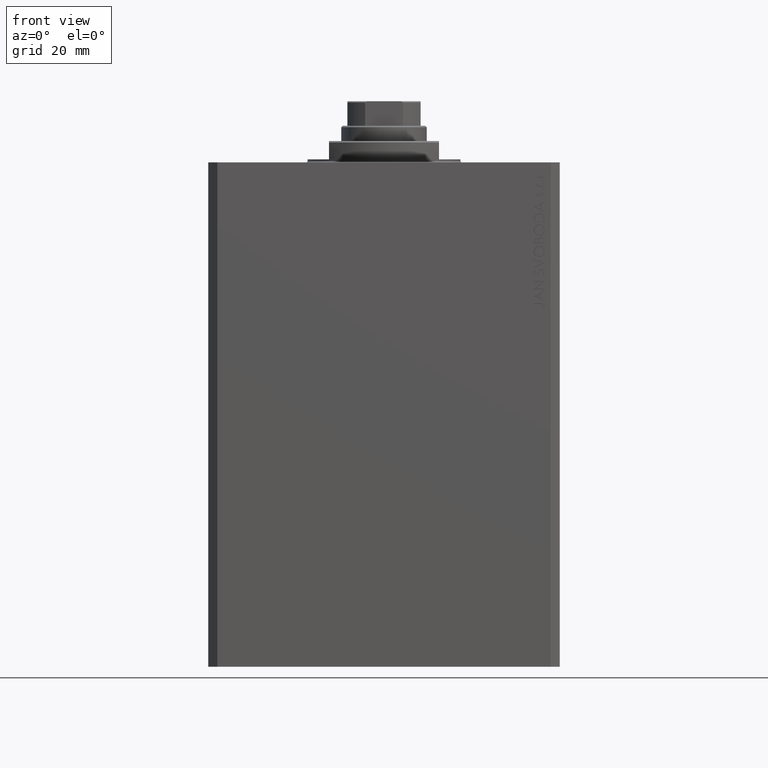
[diagram: clean part render]
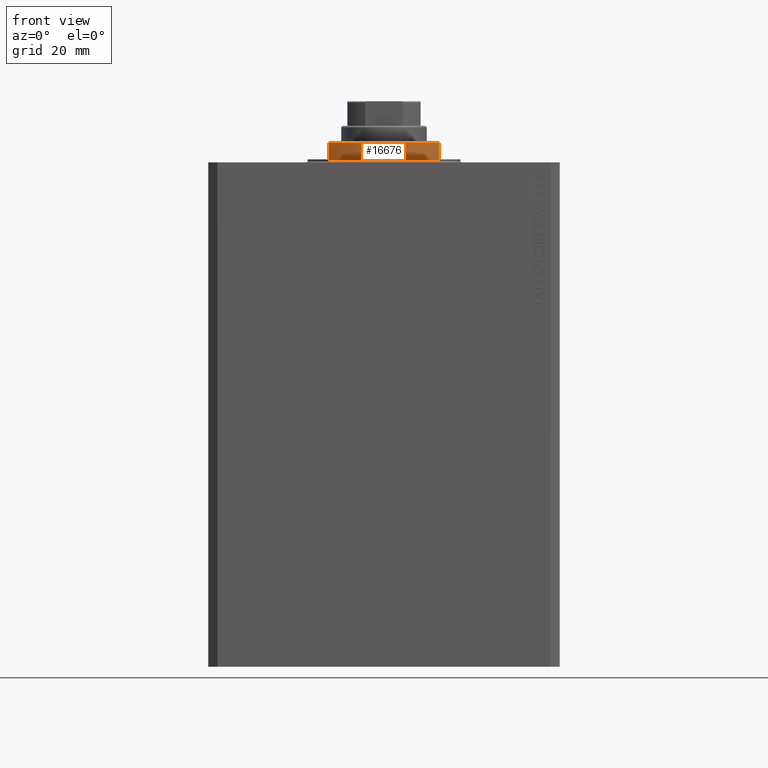
[diagram: same view with one face highlighted and labeled with its STEP entity id]
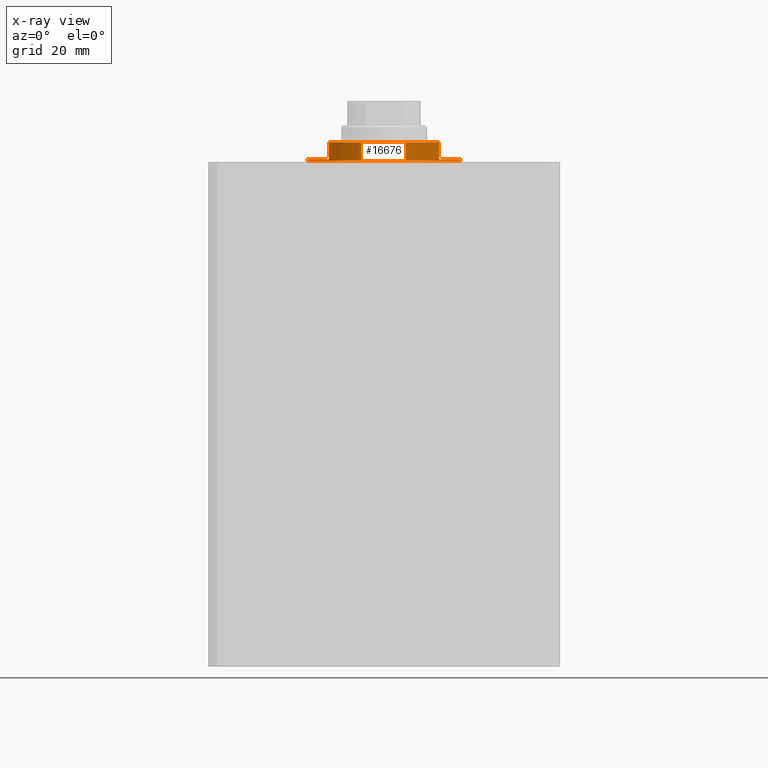
[diagram: x-ray of the same camera — body ghosted, the highlighted face saturated]
A machine part, front view. The second image highlights one B-rep face of the part: STEP entity #16676.
The next image is the same camera in x-ray: the body ghosted, the highlighted face saturated — about 0% of this face is hidden behind the body in this view.
In plain terms, the highlighted cylindrical surface (partial cylindrical patch) has radius 25 mm, axis along (0, 0, -1).
Its self-contained STEP definition (entity closure, byte-faithful):
#2075 = VERTEX_POINT ( 'NONE', #29955 ) ;
#2560 = AXIS2_PLACEMENT_3D ( 'NONE', #16094, #26647, #40516 ) ;
#2995 = EDGE_CURVE ( 'NONE', #25222, #2075, #5168, .T. ) ;
#5168 = LINE ( 'NONE', #19526, #12630 ) ;
#5194 = CIRCLE ( 'NONE', #38055, 25.00000000000000000 ) ;
#5323 = DIRECTION ( 'NONE',  ( -1.000000000000000000, 0.000000000000000000, 0.000000000000000000 ) ) ;
#5936 = VECTOR ( 'NONE', #16991, 1000.000000000000000 ) ;
#6571 = DIRECTION ( 'NONE',  ( -1.000000000000000000, 0.000000000000000000, 0.000000000000000000 ) ) ;
#7960 = FACE_OUTER_BOUND ( 'NONE', #42545, .T. ) ;
#11306 = VERTEX_POINT ( 'NONE', #28495 ) ;
#11765 = VERTEX_POINT ( 'NONE', #20487 ) ;
#12630 = VECTOR ( 'NONE', #16660, 1000.000000000000000 ) ;
#12932 = CARTESIAN_POINT ( 'NONE',  ( 18.00000000000000000, -17.34935157289747920, -7.000000000000000000 ) ) ;
#13378 = ORIENTED_EDGE ( 'NONE', *, *, #47366, .T. ) ;
#13770 = ORIENTED_EDGE ( 'NONE', *, *, #23723, .F. ) ;
#14617 = ORIENTED_EDGE ( 'NONE', *, *, #29239, .F. ) ;
#15464 = DIRECTION ( 'NONE',  ( -1.000000000000000000, 0.000000000000000000, 0.000000000000000000 ) ) ;
#16094 = CARTESIAN_POINT ( 'NONE',  ( 0.000000000000000000, 0.000000000000000000, -7.000000000000000000 ) ) ;
#16152 = DIRECTION ( 'NONE',  ( -0.000000000000000000, -0.000000000000000000, 1.000000000000000000 ) ) ;
#16336 = EDGE_CURVE ( 'NONE', #30092, #19725, #37440, .T. ) ;
#16536 = CIRCLE ( 'NONE', #20323, 25.00000000000000000 ) ;
#16660 = DIRECTION ( 'NONE',  ( -0.000000000000000000, -0.000000000000000000, 1.000000000000000000 ) ) ;
#16676 = ADVANCED_FACE ( 'NONE', ( #7960 ), #19207, .T. ) ;
#16991 = DIRECTION ( 'NONE',  ( 0.000000000000000000, 0.000000000000000000, -1.000000000000000000 ) ) ;
#17218 = LINE ( 'NONE', #12932, #5936 ) ;
#17554 = VECTOR ( 'NONE', #19479, 1000.000000000000000 ) ;
#19207 = CYLINDRICAL_SURFACE ( 'NONE', #2560, 25.00000000000000000 ) ;
#19479 = DIRECTION ( 'NONE',  ( 0.000000000000000000, 0.000000000000000000, -1.000000000000000000 ) ) ;
#19526 = CARTESIAN_POINT ( 'NONE',  ( 25.00000000000000000, 0.000000000000000000, -7.000000000000000000 ) ) ;
#19670 = CARTESIAN_POINT ( 'NONE',  ( 18.00000000000000000, -17.34935157289747920, -1.000000000000000000 ) ) ;
#19725 = VERTEX_POINT ( 'NONE', #42129 ) ;
#20323 = AXIS2_PLACEMENT_3D ( 'NONE', #26489, #40597, #15464 ) ;
#20392 = DIRECTION ( 'NONE',  ( 0.000000000000000000, 0.000000000000000000, 1.000000000000000000 ) ) ;
#20487 = CARTESIAN_POINT ( 'NONE',  ( 18.00000000000000000, -17.34935157289747920, -6.499999999999958256 ) ) ;
#20868 = VECTOR ( 'NONE', #16152, 1000.000000000000000 ) ;
#22319 = CIRCLE ( 'NONE', #43753, 25.00000000000000000 ) ;
#23678 = ORIENTED_EDGE ( 'NONE', *, *, #37753, .T. ) ;
#23723 = EDGE_CURVE ( 'NONE', #25222, #24915, #16536, .T. ) ;
#24220 = CARTESIAN_POINT ( 'NONE',  ( 0.000000000000000000, 0.000000000000000000, -6.499999999999958256 ) ) ;
#24915 = VERTEX_POINT ( 'NONE', #19670 ) ;
#25222 = VERTEX_POINT ( 'NONE', #46583 ) ;
#26489 = CARTESIAN_POINT ( 'NONE',  ( 0.000000000000000000, 0.000000000000000000, -1.000000000000000000 ) ) ;
#26647 = DIRECTION ( 'NONE',  ( -0.000000000000000000, -0.000000000000000000, 1.000000000000000000 ) ) ;
#27373 = ORIENTED_EDGE ( 'NONE', *, *, #2995, .T. ) ;
#28162 = AXIS2_PLACEMENT_3D ( 'NONE', #28611, #42950, #6571 ) ;
#28495 = CARTESIAN_POINT ( 'NONE',  ( -18.00000000000000000, -17.34935157289747920, -1.000000000000000000 ) ) ;
#28496 = CARTESIAN_POINT ( 'NONE',  ( -25.00000000000000000, 3.061616997868383043E-15, -1.000000000000000000 ) ) ;
#28611 = CARTESIAN_POINT ( 'NONE',  ( 0.000000000000000000, 0.000000000000000000, -1.000000000000000000 ) ) ;
#29239 = EDGE_CURVE ( 'NONE', #24915, #11765, #17218, .T. ) ;
#29343 = CARTESIAN_POINT ( 'NONE',  ( -18.00000000000000000, -17.34935157289747920, -6.499999999999956479 ) ) ;
#29955 = CARTESIAN_POINT ( 'NONE',  ( 25.00000000000000000, 0.000000000000000000, -0.4999999999999995559 ) ) ;
#30092 = VERTEX_POINT ( 'NONE', #28496 ) ;
#30437 = CIRCLE ( 'NONE', #28162, 25.00000000000000000 ) ;
#31660 = ORIENTED_EDGE ( 'NONE', *, *, #33366, .F. ) ;
#33366 = EDGE_CURVE ( 'NONE', #11306, #30092, #30437, .T. ) ;
#36081 = ORIENTED_EDGE ( 'NONE', *, *, #44272, .T. ) ;
#37189 = LINE ( 'NONE', #40323, #17554 ) ;
#37440 = LINE ( 'NONE', #37674, #20868 ) ;
#37638 = VERTEX_POINT ( 'NONE', #29343 ) ;
#37674 = CARTESIAN_POINT ( 'NONE',  ( -25.00000000000000000, 3.061616997868383043E-15, -7.000000000000000000 ) ) ;
#37753 = EDGE_CURVE ( 'NONE', #11306, #37638, #37189, .T. ) ;
#38055 = AXIS2_PLACEMENT_3D ( 'NONE', #41026, #40792, #44624 ) ;
#40323 = CARTESIAN_POINT ( 'NONE',  ( -18.00000000000000000, -17.34935157289747920, -7.000000000000000000 ) ) ;
#40516 = DIRECTION ( 'NONE',  ( 1.000000000000000000, 0.000000000000000000, 0.000000000000000000 ) ) ;
#40597 = DIRECTION ( 'NONE',  ( 0.000000000000000000, 0.000000000000000000, -1.000000000000000000 ) ) ;
#40792 = DIRECTION ( 'NONE',  ( -0.000000000000000000, -0.000000000000000000, -1.000000000000000000 ) ) ;
#41026 = CARTESIAN_POINT ( 'NONE',  ( 0.000000000000000000, 0.000000000000000000, -0.4999999999999995559 ) ) ;
#42129 = CARTESIAN_POINT ( 'NONE',  ( -25.00000000000000000, 3.061616997868383043E-15, -0.4999999999999995559 ) ) ;
#42545 = EDGE_LOOP ( 'NONE', ( #47244, #31660, #23678, #36081, #14617, #13770, #27373, #13378 ) ) ;
#42950 = DIRECTION ( 'NONE',  ( 0.000000000000000000, 0.000000000000000000, -1.000000000000000000 ) ) ;
#43753 = AXIS2_PLACEMENT_3D ( 'NONE', #24220, #20392, #5323 ) ;
#44272 = EDGE_CURVE ( 'NONE', #37638, #11765, #22319, .T. ) ;
#44624 = DIRECTION ( 'NONE',  ( 1.000000000000000000, 0.000000000000000000, 0.000000000000000000 ) ) ;
#46583 = CARTESIAN_POINT ( 'NONE',  ( 25.00000000000000000, 0.000000000000000000, -1.000000000000000000 ) ) ;
#47244 = ORIENTED_EDGE ( 'NONE', *, *, #16336, .F. ) ;
#47366 = EDGE_CURVE ( 'NONE', #2075, #19725, #5194, .T. ) ;